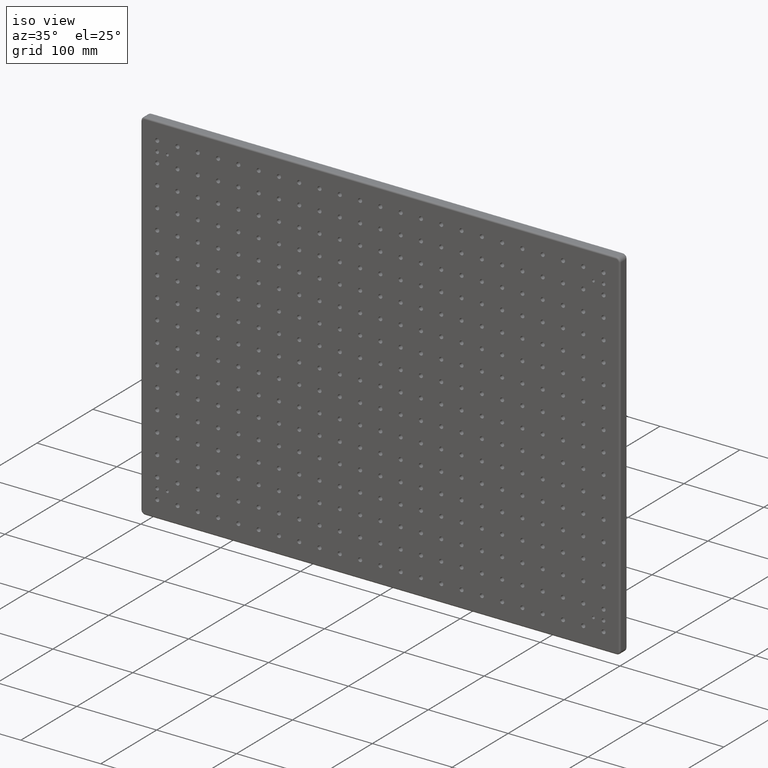
[diagram: clean part render]
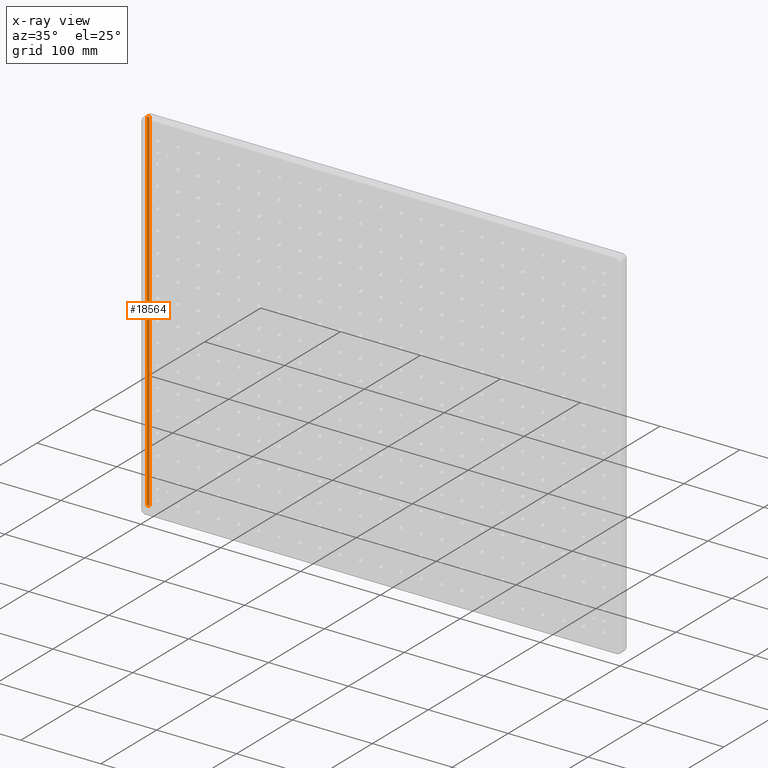
[diagram: x-ray — body ghosted, one internal face saturated and labeled with its STEP entity id]
A machine part, iso view, then the same camera in x-ray: the body is ghosted and one INTERNAL B-rep face — a face not visible from any outside direction — is saturated and labeled: STEP entity #18564.
In plain terms, the highlighted cylindrical surface (edge-blend (fillet) strip) has radius 2 mm, axis along (0, 0, -1).
Its self-contained STEP definition (entity closure, byte-faithful):
#137 = AXIS2_PLACEMENT_3D ( 'NONE', #21569, #7631, #12426 ) ;
#652 = DIRECTION ( 'NONE',  ( 0.0000000000000000000, -0.0000000000000000000, 1.000000000000000000 ) ) ;
#1690 = EDGE_LOOP ( 'NONE', ( #19629, #18501, #16944, #11478 ) ) ;
#2628 = DIRECTION ( 'NONE',  ( 1.000000000000000000, 0.0000000000000000000, 0.0000000000000000000 ) ) ;
#4153 = CYLINDRICAL_SURFACE ( 'NONE', #7273, 2.000000000000001800 ) ;
#4388 = EDGE_CURVE ( 'NONE', #29177, #11996, #18803, .T. ) ;
#7237 = EDGE_CURVE ( 'NONE', #11996, #7761, #23286, .T. ) ;
#7273 = AXIS2_PLACEMENT_3D ( 'NONE', #22327, #15080, #24987 ) ;
#7455 = EDGE_CURVE ( 'NONE', #29177, #30222, #8867, .T. ) ;
#7631 = DIRECTION ( 'NONE',  ( 0.0000000000000000000, -0.0000000000000000000, 1.000000000000000000 ) ) ;
#7761 = VERTEX_POINT ( 'NONE', #20794 ) ;
#8867 = CIRCLE ( 'NONE', #27954, 2.000000000000001800 ) ;
#11478 = ORIENTED_EDGE ( 'NONE', *, *, #4388, .F. ) ;
#11512 = DIRECTION ( 'NONE',  ( -0.0000000000000000000, 0.0000000000000000000, 1.000000000000000000 ) ) ;
#11996 = VERTEX_POINT ( 'NONE', #25910 ) ;
#12204 = FACE_OUTER_BOUND ( 'NONE', #1690, .T. ) ;
#12426 = DIRECTION ( 'NONE',  ( 1.000000000000000000, 0.0000000000000000000, 0.0000000000000000000 ) ) ;
#12502 = VECTOR ( 'NONE', #11512, 1000.000000000000000 ) ;
#14446 = CARTESIAN_POINT ( 'NONE',  ( -297.9999999999998900, 11.00000000000000000, -220.0000000000000300 ) ) ;
#15080 = DIRECTION ( 'NONE',  ( 0.0000000000000000000, 0.0000000000000000000, -1.000000000000000000 ) ) ;
#15170 = LINE ( 'NONE', #16465, #25508 ) ;
#16465 = CARTESIAN_POINT ( 'NONE',  ( -299.9999999999997700, 11.00000000000000000, -220.0000000000000300 ) ) ;
#16944 = ORIENTED_EDGE ( 'NONE', *, *, #7237, .F. ) ;
#17443 = CARTESIAN_POINT ( 'NONE',  ( -297.9999999999998900, 13.00000000000000000, -220.0000000000000300 ) ) ;
#18501 = ORIENTED_EDGE ( 'NONE', *, *, #20925, .F. ) ;
#18564 = ADVANCED_FACE ( 'NONE', ( #12204 ), #4153, .T. ) ;
#18803 = LINE ( 'NONE', #28233, #12502 ) ;
#19629 = ORIENTED_EDGE ( 'NONE', *, *, #7455, .T. ) ;
#20794 = CARTESIAN_POINT ( 'NONE',  ( -299.9999999999998900, 11.00000000000000000, 220.0000000000000300 ) ) ;
#20925 = EDGE_CURVE ( 'NONE', #7761, #30222, #15170, .T. ) ;
#21569 = CARTESIAN_POINT ( 'NONE',  ( -297.9999999999997700, 11.00000000000000000, 220.0000000000000300 ) ) ;
#22327 = CARTESIAN_POINT ( 'NONE',  ( -297.9999999999997700, 11.00000000000000000, -220.0000000000000300 ) ) ;
#23286 = CIRCLE ( 'NONE', #137, 2.000000000000001800 ) ;
#24987 = DIRECTION ( 'NONE',  ( -1.000000000000000000, 0.0000000000000000000, 0.0000000000000000000 ) ) ;
#25508 = VECTOR ( 'NONE', #25759, 1000.000000000000000 ) ;
#25759 = DIRECTION ( 'NONE',  ( 0.0000000000000000000, -0.0000000000000000000, -1.000000000000000000 ) ) ;
#25910 = CARTESIAN_POINT ( 'NONE',  ( -297.9999999999997700, 13.00000000000000000, 220.0000000000000300 ) ) ;
#27426 = CARTESIAN_POINT ( 'NONE',  ( -299.9999999999997700, 11.00000000000000000, -220.0000000000000300 ) ) ;
#27954 = AXIS2_PLACEMENT_3D ( 'NONE', #14446, #652, #2628 ) ;
#28233 = CARTESIAN_POINT ( 'NONE',  ( -297.9999999999997700, 13.00000000000000000, 220.0000000000000300 ) ) ;
#29177 = VERTEX_POINT ( 'NONE', #17443 ) ;
#30222 = VERTEX_POINT ( 'NONE', #27426 ) ;